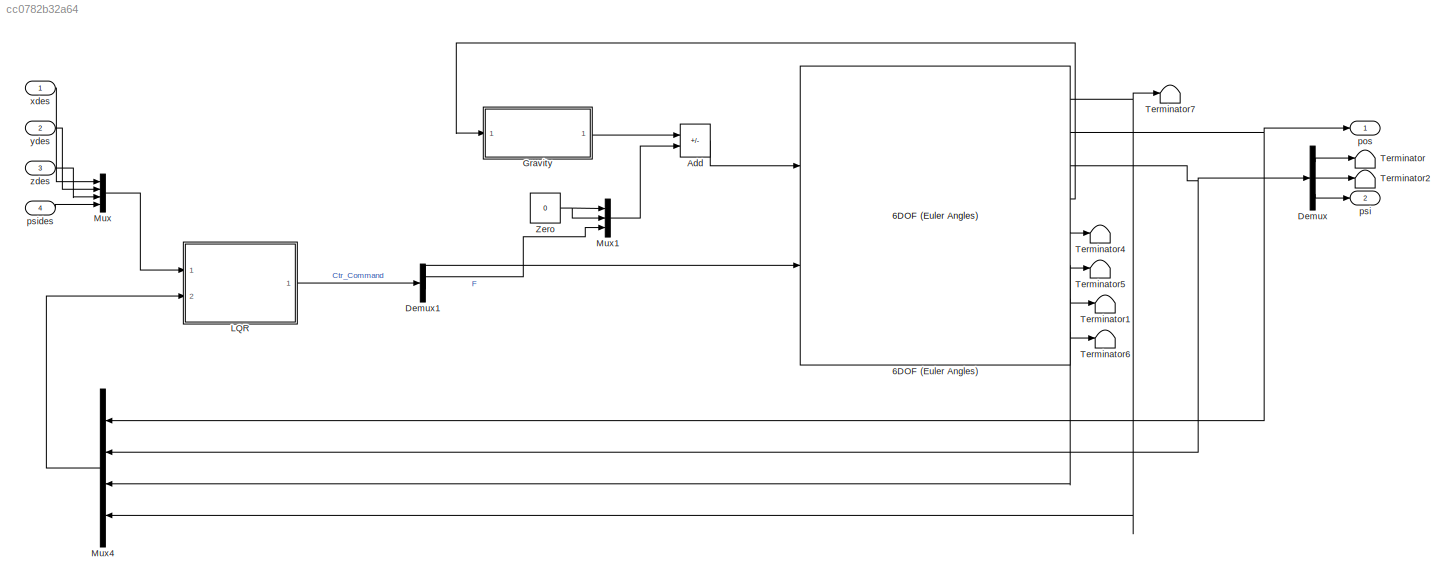
MODEL slx_cc0782b32a64
KIND model
CONFIG AbsTol = auto
CONFIG EnableMultiTasking = off
CONFIG FixedStep = auto
CONFIG MaxStep = auto
CONFIG MinStep = auto
CONFIG RelTol = 1e-3
CONFIG SampleTimeConstraint = Unconstrained
CONFIG SolverName = VariableStepAuto
CONFIG StartTime = 0.0
CONFIG StopTime = 10.0
BLOCK [Reference] 6DOF (Euler Angles)  REF=shared6dof/6DOF (Euler Angles)
  Ports = [2, 8]
  SourceBlock = shared6dof/6DOF (Euler Angles)
  SourceProductBaseCode = AE,PW,DR,MT,UV,VE
  SourceType = 6DOF EoM (Body Axis)
BLOCK [Sum] Add
  IconShape = rectangular
  Inputs = +-
  Ports = [2, 1]
BLOCK [Demux] Demux
  Outputs = 3
  Ports = [1, 3]
BLOCK [Demux] Demux1
  Outputs = 2
  Ports = [1, 2]
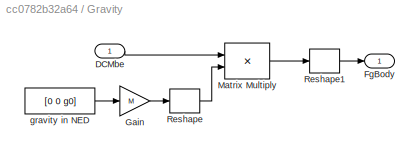
BLOCK [SubSystem] Gravity 
  Ports = [1, 1]
  RequestExecContextInheritance = off
BLOCK [Inport] Gravity /DCMbe
BLOCK [Outport] Gravity /FgBody
BLOCK [Gain] Gravity /Gain
  Gain = M
BLOCK [Product] Gravity /Matrix Multiply
  Multiplication = Matrix(*)
  Ports = [2, 1]
BLOCK [Reshape] Gravity /Reshape
  OutputDimensionality = Column vector (2-D)
  Ports = [1, 1]
BLOCK [Reshape] Gravity /Reshape1
  Ports = [1, 1]
BLOCK [Constant] Gravity /gravity in NED
  Value = [0 0 g0]
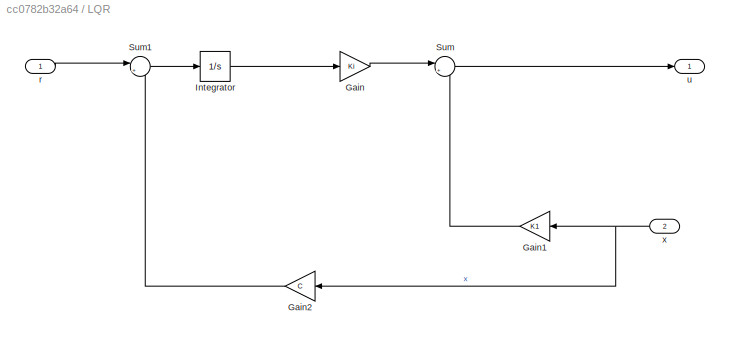
BLOCK [SubSystem] LQR
  Ports = [2, 1]
  RequestExecContextInheritance = off
BLOCK [Gain] LQR/Gain
  Gain = Ki
  Multiplication = Matrix(K*u)
BLOCK [Gain] LQR/Gain1
  Gain = K1
  Multiplication = Matrix(K*u)
  NameLocation = top
BLOCK [Gain] LQR/Gain2
  Gain = C
  Multiplication = Matrix(K*u)
  NameLocation = top
BLOCK [Integrator] LQR/Integrator
  Ports = [1, 1]
BLOCK [Sum] LQR/Sum
  Inputs = |+-
  Ports = [2, 1]
BLOCK [Sum] LQR/Sum1
  Inputs = |+-
  Ports = [2, 1]
BLOCK [Inport] LQR/r
BLOCK [Outport] LQR/u
BLOCK [Inport] LQR/x
  NameLocation = top
  Port = 2
BLOCK [Mux] Mux
  DisplayOption = bar
  Ports = [4, 1]
BLOCK [Mux] Mux1
  DisplayOption = bar
  Inputs = 3
  Ports = [3, 1]
BLOCK [Mux] Mux4
  DisplayOption = bar
  NameLocation = top
  Ports = [4, 1]
BLOCK [Terminator] Terminator
BLOCK [Terminator] Terminator1
BLOCK [Terminator] Terminator2
BLOCK [Terminator] Terminator4
BLOCK [Terminator] Terminator5
BLOCK [Terminator] Terminator6
BLOCK [Terminator] Terminator7
BLOCK [Constant] Zero
  OutDataTypeStr = Inherit: Inherit via back propagation
  Value = 0
BLOCK [Outport] pos
BLOCK [Outport] psi
  Port = 2
BLOCK [Inport] psides
  Port = 4
BLOCK [Inport] xdes
BLOCK [Inport] ydes
  Port = 2
BLOCK [Inport] zdes
  Port = 3
NET 6DOF (Euler Angles):1 -> Mux4:4, Terminator7:1
NET 6DOF (Euler Angles):2 -> Mux4:1, pos:1
NET 6DOF (Euler Angles):3 -> Demux:1, Mux4:2
LINE 6DOF (Euler Angles):4 -> Gravity :1
LINE 6DOF (Euler Angles):5 -> Terminator4:1
NET 6DOF (Euler Angles):6 -> Mux4:3, Terminator5:1
LINE 6DOF (Euler Angles):7 -> Terminator1:1
LINE 6DOF (Euler Angles):8 -> Terminator6:1
LINE Add:1 -> 6DOF (Euler Angles):1
LINE Demux1:1 -> Mux1:3
LINE Demux1:2 -> 6DOF (Euler Angles):2
LINE Demux:1 -> Terminator:1
LINE Demux:2 -> Terminator2:1
LINE Demux:3 -> psi:1
LINE Gravity /DCMbe:1 -> Gravity /Matrix Multiply:1
LINE Gravity /Gain:1 -> Gravity /Reshape:1
LINE Gravity /Matrix Multiply:1 -> Gravity /Reshape1:1
LINE Gravity /Reshape1:1 -> Gravity /FgBody:1
LINE Gravity /Reshape:1 -> Gravity /Matrix Multiply:2
LINE Gravity /gravity in NED:1 -> Gravity /Gain:1
LINE Gravity :1 -> Add:1
LINE LQR/Gain1:1 -> LQR/Sum:2
LINE LQR/Gain2:1 -> LQR/Sum1:2
LINE LQR/Gain:1 -> LQR/Sum:1
LINE LQR/Integrator:1 -> LQR/Gain:1
LINE LQR/Sum1:1 -> LQR/Integrator:1
LINE LQR/Sum:1 -> LQR/u:1
LINE LQR/r:1 -> LQR/Sum1:1
NET LQR/x:1 -> LQR/Gain1:1, LQR/Gain2:1
LINE LQR:1 -> Demux1:1
LINE Mux1:1 -> Add:2
LINE Mux4:1 -> LQR:2
LINE Mux:1 -> LQR:1
NET Zero:1 -> Mux1:1, Mux1:2
LINE psides:1 -> Mux:4
LINE xdes:1 -> Mux:1
LINE ydes:1 -> Mux:2
LINE zdes:1 -> Mux:3
note: NET lines group one-source signal fan-out (src -> all destinations, sorted); 1:1 wires keep LINE
